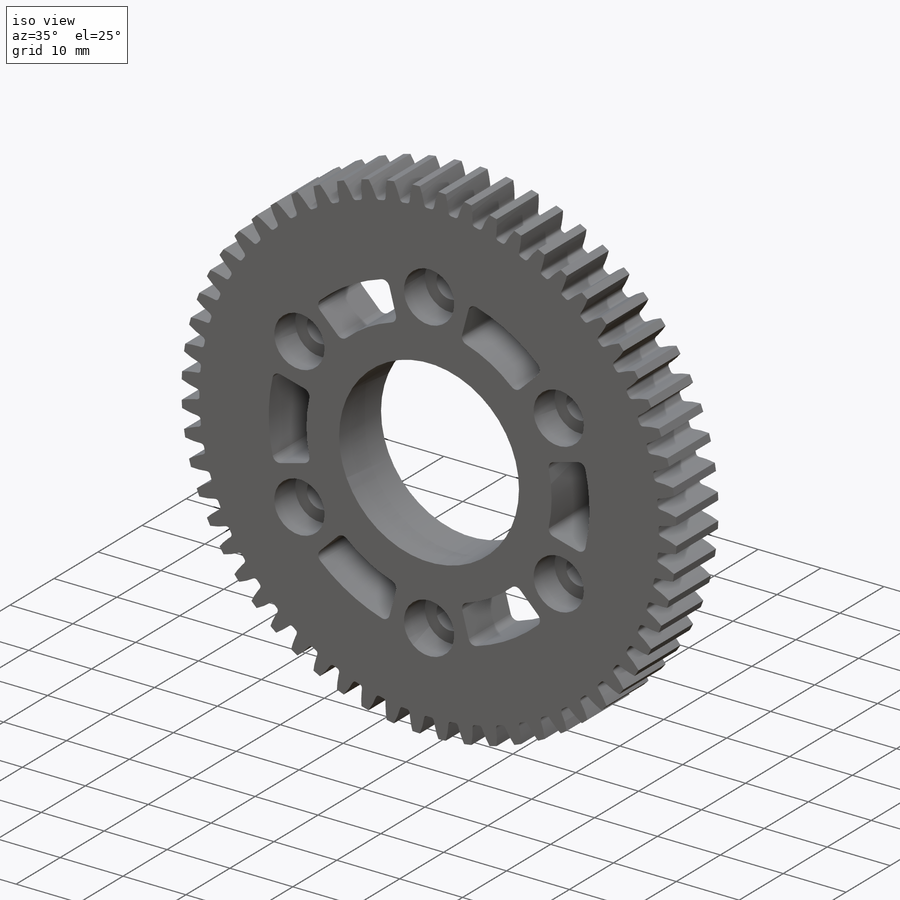
[diagram: iso view]
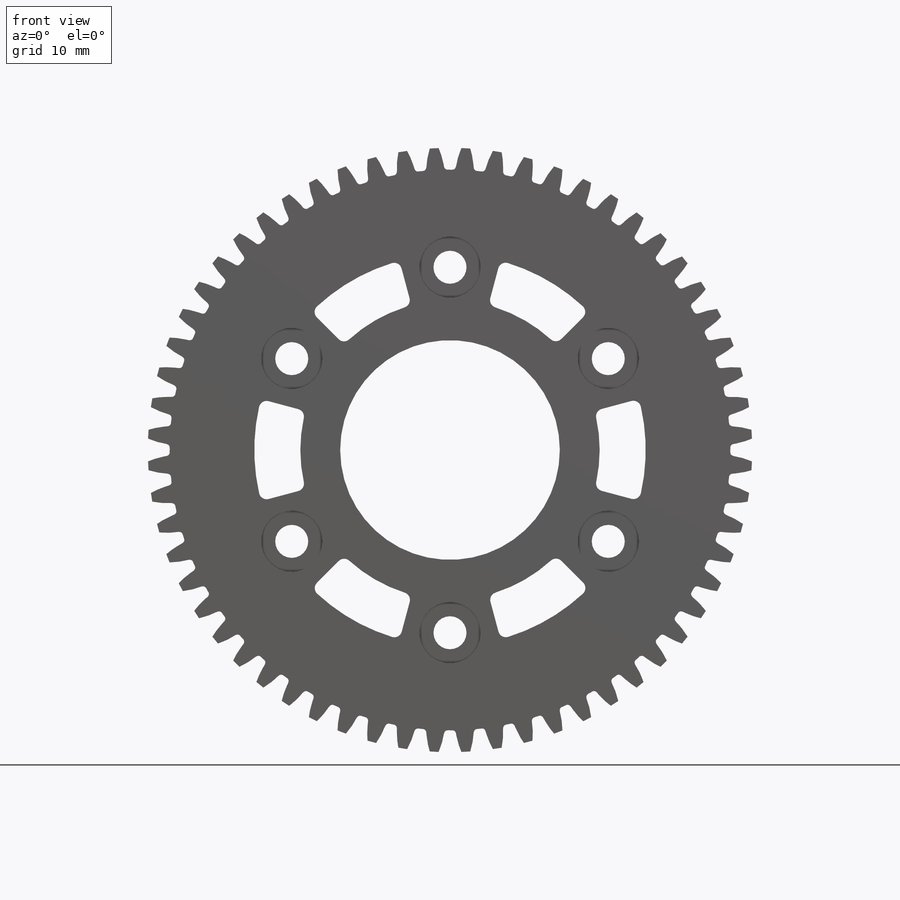
[diagram: front view]
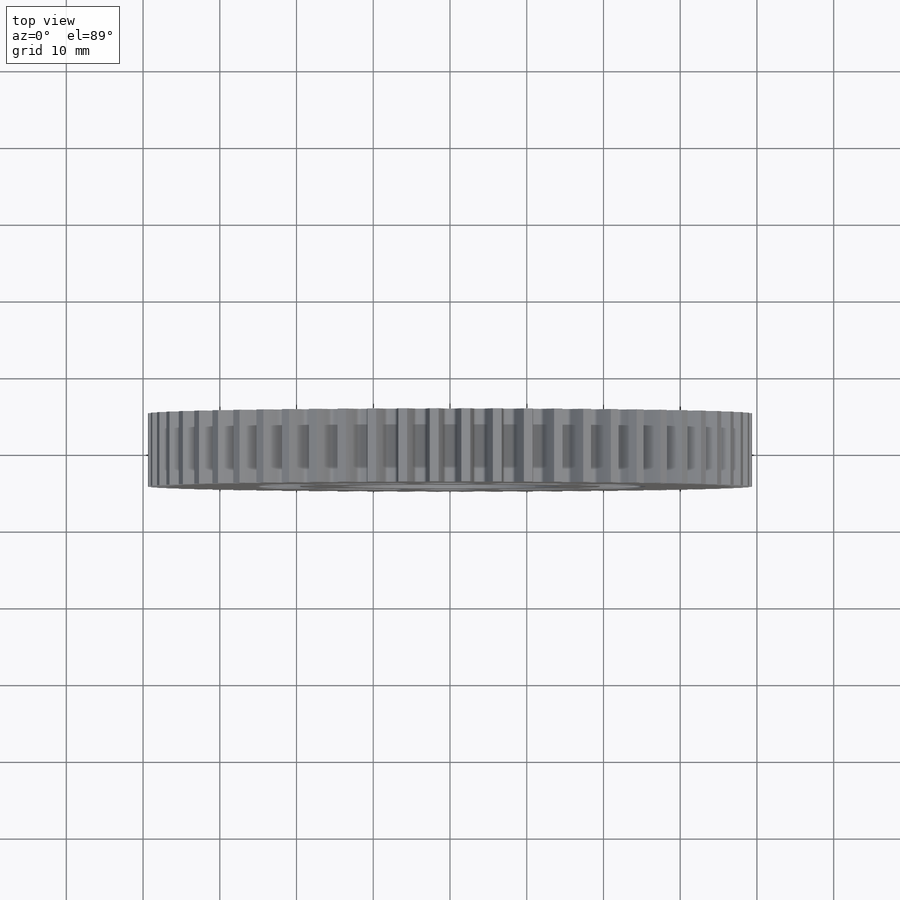
[diagram: top view]
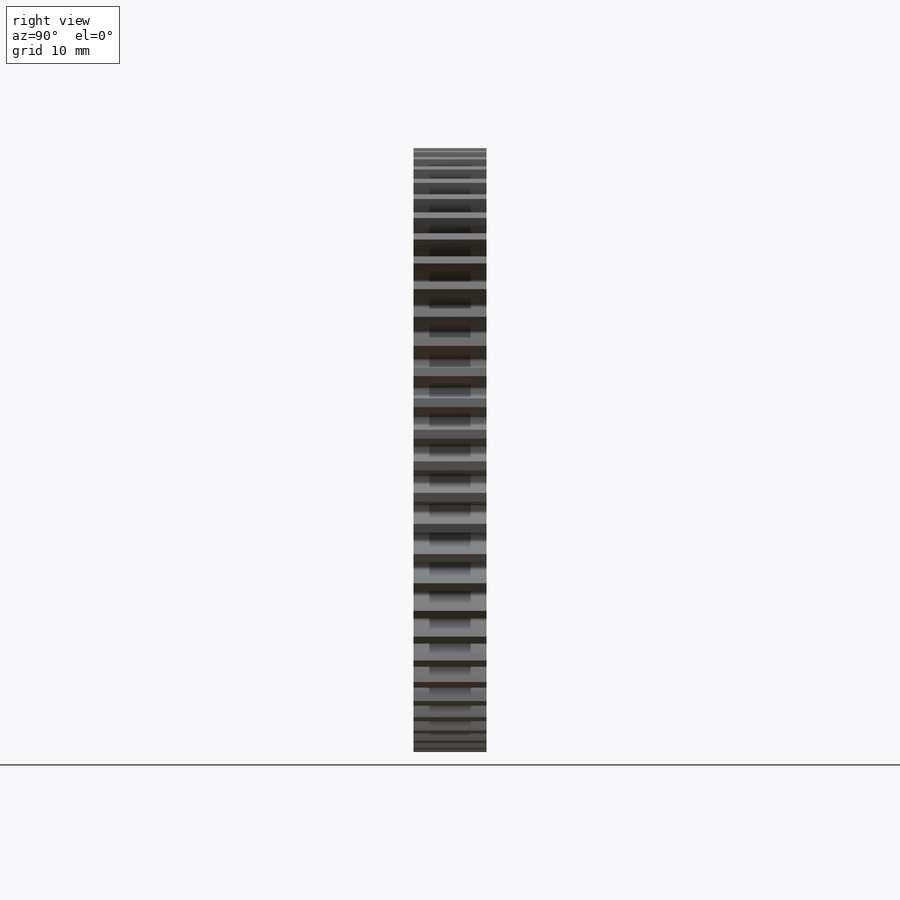
[diagram: right view]
SOLIDWORKS PART (.sldprt)
format: sldprt  version: not decoded by parser v0  size: 866,816 bytes
history: native  units: mm
features: sketch x11, cut_extrude x6, hole x2, material x1, plane x1, extrude x1, fillet x1 (+12 scaffold rows collapsed)
feature tree (35):
  scaffold x12  (default folders/planes/origin — collapsed)
  material  "7075-T6 (SN)"
  plane  "Plane1"  Offset=4.7625mm
  sketch  "Sketch1"
  extrude  "Boss-Extrude1"  Depth=9.525mm
  sketch  "Sketch2"
  cut_extrude  "Cut-Extrude1"  Depth=9.525mm
  sketch  "Sketch3"
  cut_extrude  "Cut-Extrude2"  Depth=9.525mm
  sketch  "Sketch4"
  cut_extrude  "Cut-Extrude3"  Depth=9.525mm
  sketch  "Sketch5"
  cut_extrude  "Cut-Extrude4"  Depth=9.525mm
  sketch  "Sketch6"
  cut_extrude  "Cut-Extrude5"  Depth=9.525mm
  sketch  "Sketch7"
  cut_extrude  "Cut-Extrude6"  Depth=9.525mm
  hole  "M25 Clearance Hole1"  Diameter=28.6131mm Depth=9.525mm
  sketch  "Sketch9"
  sketch  "Sketch8"  dims[hole-wizard template sketch: 59 standard entries collapsed; hole parameters kept: c18.Thru Hole Dia.=28.6131mm c18.Thru Hole Depth=9.525mm]
  hole  "CBORE for M4 Hex Head Machine Screw1"  Diameter=4.3mm Depth=9.525mm
  sketch  "Sketch11"
  sketch  "Sketch10"  dims[hole-wizard template sketch: 42 standard entries collapsed; hole parameters kept: c12.Thru Hole Depth=9.525mm c12.C'Bore Dia.=8.0mm c12.C'Bore Depth=4.7625mm]
  fillet  "Fillet1"  Radius=1mm
decode coverage: 12 of 21 modeling features carry decoded parameters
note: ~ marks probable driven/reference dimensions
note: suppression state not decoded; provenance and decode notes live in map.json
